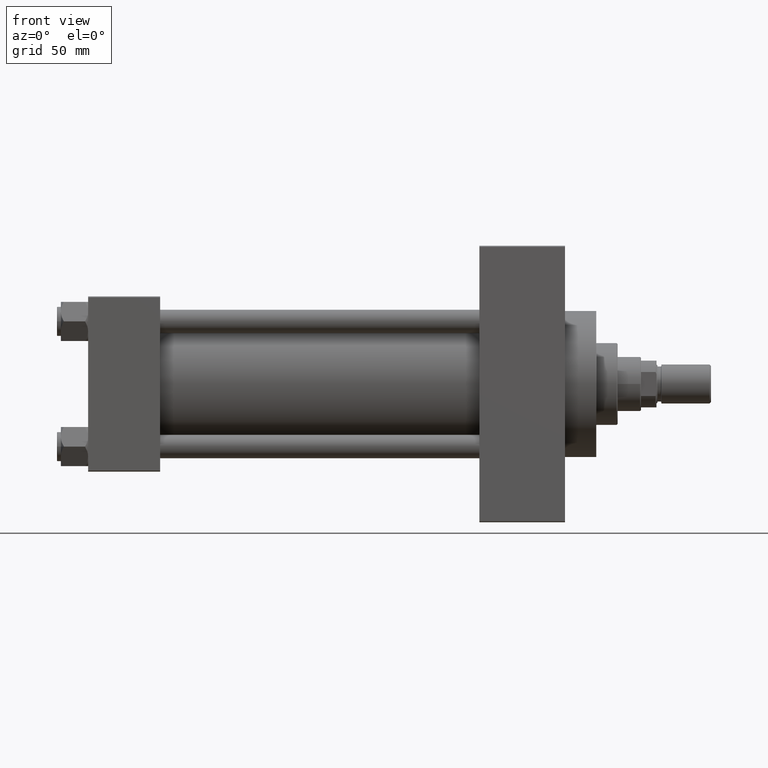
[diagram: clean part render]
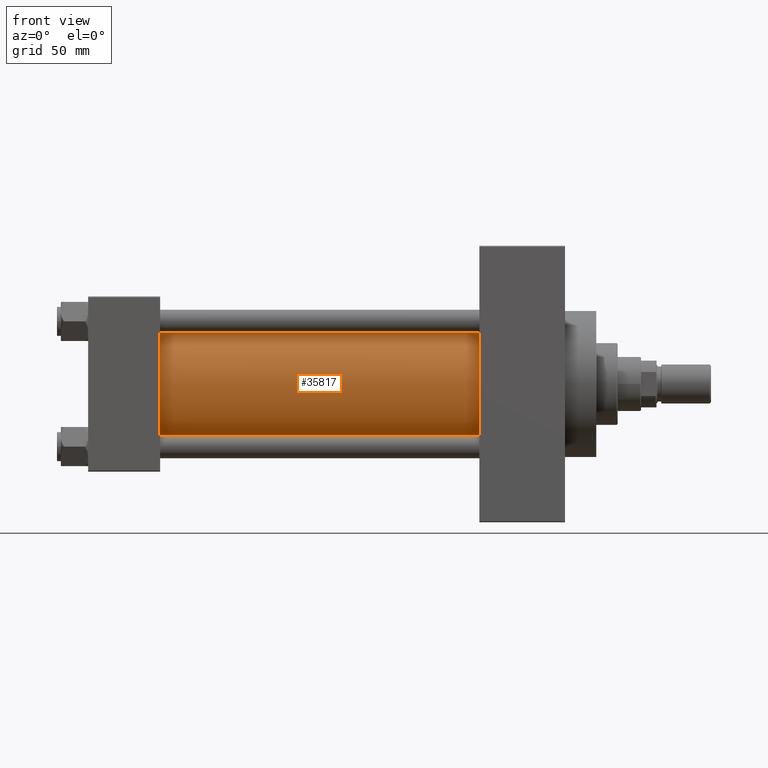
[diagram: same view with one face highlighted and labeled with its STEP entity id]
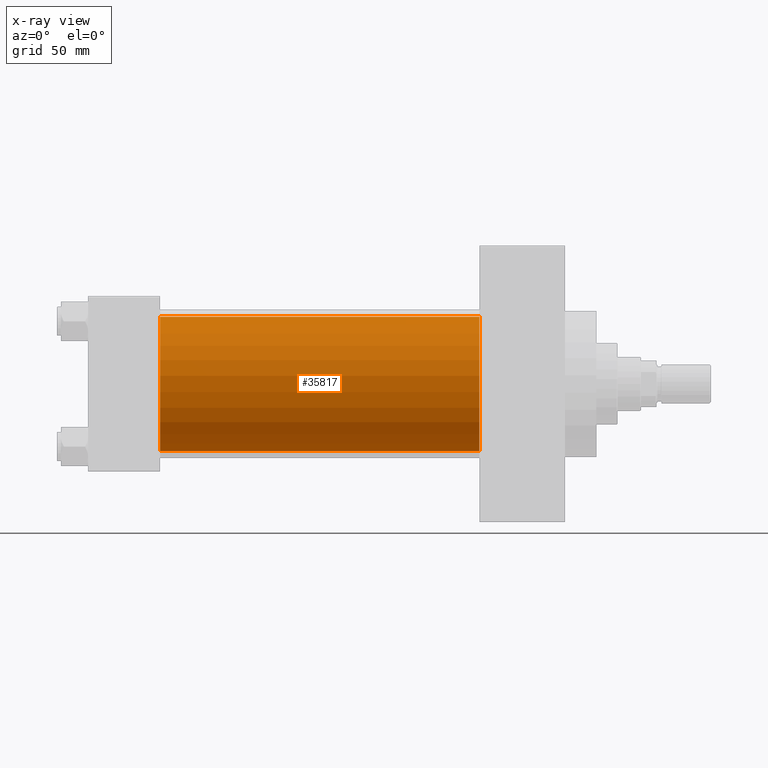
[diagram: x-ray of the same camera — body ghosted, the highlighted face saturated]
A machine part, front view. The second image highlights one B-rep face of the part: STEP entity #35817.
The next image is the same camera in x-ray: the body ghosted, the highlighted face saturated — about 0% of this face is hidden behind the body in this view.
In plain terms, the highlighted cylindrical surface (partial cylindrical patch) has radius 34.5 mm, axis along (-1, -0, -0).
Its self-contained STEP definition (entity closure, byte-faithful):
#1135 = LINE ( 'NONE', #26568, #23385 ) ;
#3028 = EDGE_CURVE ( 'NONE', #18513, #37035, #26155, .T. ) ;
#4287 = VERTEX_POINT ( 'NONE', #40092 ) ;
#4933 = CARTESIAN_POINT ( 'NONE',  ( 201.0000000000000000, -2.602085213965210642E-15, 0.000000000000000000 ) ) ;
#5657 = DIRECTION ( 'NONE',  ( 1.000000000000000000, -0.000000000000000000, 0.000000000000000000 ) ) ;
#6675 = VERTEX_POINT ( 'NONE', #11631 ) ;
#8691 = ORIENTED_EDGE ( 'NONE', *, *, #33246, .T. ) ;
#11631 = CARTESIAN_POINT ( 'NONE',  ( 37.00000000000000711, -2.602085213965210642E-15, 34.50000000000000000 ) ) ;
#12394 = ORIENTED_EDGE ( 'NONE', *, *, #25594, .F. ) ;
#15587 = CYLINDRICAL_SURFACE ( 'NONE', #20404, 34.50000000000000000 ) ;
#15615 = ORIENTED_EDGE ( 'NONE', *, *, #46722, .T. ) ;
#15634 = DIRECTION ( 'NONE',  ( 1.000000000000000000, 0.000000000000000000, 0.000000000000000000 ) ) ;
#15951 = DIRECTION ( 'NONE',  ( -1.000000000000000000, -0.000000000000000000, -0.000000000000000000 ) ) ;
#16199 = ORIENTED_EDGE ( 'NONE', *, *, #3028, .F. ) ;
#16397 = EDGE_LOOP ( 'NONE', ( #12394, #16199, #8691, #15615 ) ) ;
#16670 = CARTESIAN_POINT ( 'NONE',  ( 201.0000000000000000, 1.622946243093158675E-15, -34.50000000000000000 ) ) ;
#17028 = DIRECTION ( 'NONE',  ( 0.000000000000000000, 0.000000000000000000, 1.000000000000000000 ) ) ;
#18511 = CARTESIAN_POINT ( 'NONE',  ( 201.0000000000000000, -2.602085213965210642E-15, 34.50000000000000000 ) ) ;
#18513 = VERTEX_POINT ( 'NONE', #18511 ) ;
#20172 = DIRECTION ( 'NONE',  ( 0.000000000000000000, 0.000000000000000000, 1.000000000000000000 ) ) ;
#20173 = VECTOR ( 'NONE', #15951, 1000.000000000000000 ) ;
#20404 = AXIS2_PLACEMENT_3D ( 'NONE', #4933, #31078, #20172 ) ;
#23385 = VECTOR ( 'NONE', #45434, 1000.000000000000000 ) ;
#23552 = AXIS2_PLACEMENT_3D ( 'NONE', #38822, #5657, #17028 ) ;
#25594 = EDGE_CURVE ( 'NONE', #37035, #4287, #34588, .T. ) ;
#26155 = CIRCLE ( 'NONE', #40093, 34.50000000000000000 ) ;
#26292 = CARTESIAN_POINT ( 'NONE',  ( 201.0000000000000000, -2.602085213965210642E-15, 0.000000000000000000 ) ) ;
#26568 = CARTESIAN_POINT ( 'NONE',  ( 201.0000000000000000, -2.602085213965210642E-15, 34.50000000000000000 ) ) ;
#27419 = CIRCLE ( 'NONE', #23552, 34.50000000000000000 ) ;
#30170 = DIRECTION ( 'NONE',  ( 0.000000000000000000, 0.000000000000000000, -1.000000000000000000 ) ) ;
#31078 = DIRECTION ( 'NONE',  ( -1.000000000000000000, -0.000000000000000000, -0.000000000000000000 ) ) ;
#32755 = CARTESIAN_POINT ( 'NONE',  ( 201.0000000000000000, 1.622946243093158675E-15, -34.50000000000000000 ) ) ;
#33246 = EDGE_CURVE ( 'NONE', #18513, #6675, #1135, .T. ) ;
#34588 = LINE ( 'NONE', #16670, #20173 ) ;
#35817 = ADVANCED_FACE ( 'NONE', ( #46065 ), #15587, .T. ) ;
#37035 = VERTEX_POINT ( 'NONE', #32755 ) ;
#38822 = CARTESIAN_POINT ( 'NONE',  ( 37.00000000000000711, -2.602085213965210642E-15, 0.000000000000000000 ) ) ;
#40092 = CARTESIAN_POINT ( 'NONE',  ( 37.00000000000000711, 1.622946243093158675E-15, -34.50000000000000000 ) ) ;
#40093 = AXIS2_PLACEMENT_3D ( 'NONE', #26292, #15634, #30170 ) ;
#45434 = DIRECTION ( 'NONE',  ( -1.000000000000000000, -0.000000000000000000, -0.000000000000000000 ) ) ;
#46065 = FACE_OUTER_BOUND ( 'NONE', #16397, .T. ) ;
#46722 = EDGE_CURVE ( 'NONE', #6675, #4287, #27419, .T. ) ;